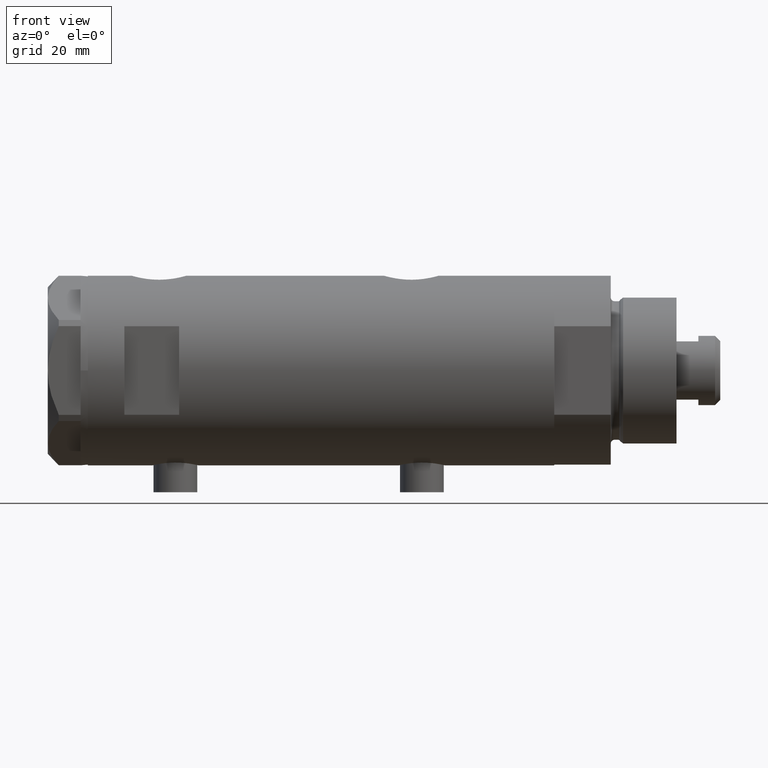
[diagram: clean part render]
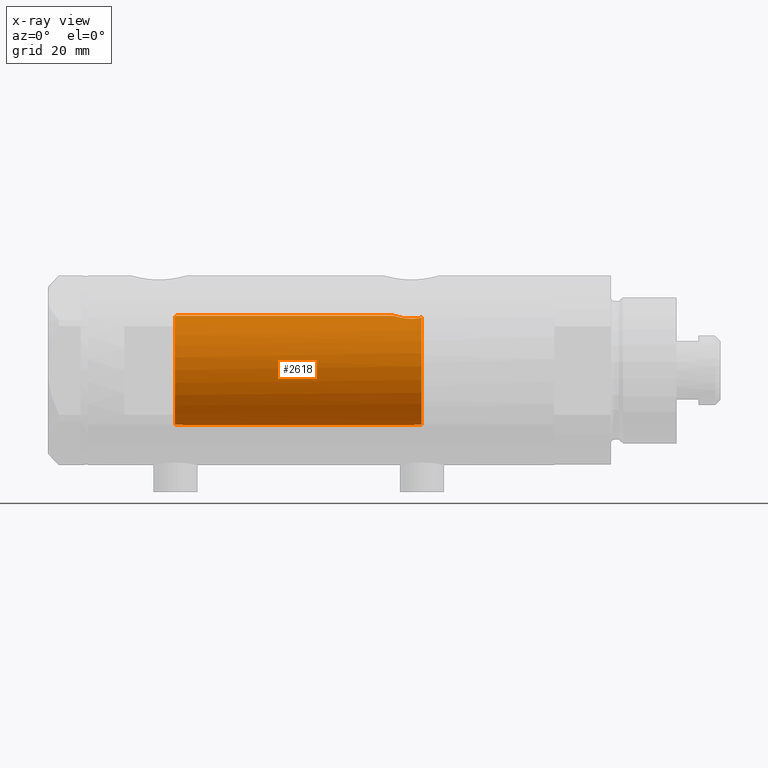
[diagram: x-ray — body ghosted, one internal face saturated and labeled with its STEP entity id]
A machine part, front view, then the same camera in x-ray: the body is ghosted and one INTERNAL B-rep face — a face not visible from any outside direction — is saturated and labeled: STEP entity #2618.
In plain terms, the highlighted cylindrical surface (partial cylindrical patch) has radius 15 mm, axis along (1, 0, -0).
Its self-contained STEP definition (entity closure, byte-faithful):
#51 = CARTESIAN_POINT ( 'NONE',  ( -14.91608554980932055, -1.590576762727819116, 38.01369720243329198 ) ) ;
#56 = CARTESIAN_POINT ( 'NONE',  ( 14.81710879718117724, -2.343063746046469387, -20.48067662538953471 ) ) ;
#152 = ORIENTED_EDGE ( 'NONE', *, *, #1133, .F. ) ;
#217 = EDGE_CURVE ( 'NONE', #2948, #4934, #341, .T. ) ;
#341 = B_SPLINE_CURVE_WITH_KNOTS ( 'NONE', 3,
 ( #4472, #4811, #4030, #3245, #1657, #4840, #877, #4397 ),
 .UNSPECIFIED., .F., .F.,
 ( 4, 2, 2, 4 ),
 ( 2.641598245732904660E-19, 0.001182100180564266394, 0.001773150270846399592, 0.002364200361128532789 ),
 .UNSPECIFIED. ) ;
#351 = DIRECTION ( 'NONE',  ( -0.000000000000000000, -0.000000000000000000, -1.000000000000000000 ) ) ;
#408 = CARTESIAN_POINT ( 'NONE',  ( 14.99508877558422704, -0.4434836953032585405, -19.90007684727664028 ) ) ;
#416 = CYLINDRICAL_SURFACE ( 'NONE', #1873, 15.00000000000000000 ) ;
#441 = CARTESIAN_POINT ( 'NONE',  ( 0.000000000000000000, 0.000000000000000000, -27.55000000000000426 ) ) ;
#457 = CARTESIAN_POINT ( 'NONE',  ( 14.30602371879161439, -4.510400617436905790, -26.58665028800271557 ) ) ;
#494 = ORIENTED_EDGE ( 'NONE', *, *, #217, .F. ) ;
#505 = EDGE_CURVE ( 'NONE', #5006, #751, #2533, .T. ) ;
#512 = CARTESIAN_POINT ( 'NONE',  ( -15.00000000000000000, 3.061618115923464028E-16, 37.45000000000000284 ) ) ;
#514 = ORIENTED_EDGE ( 'NONE', *, *, #4889, .F. ) ;
#567 = CARTESIAN_POINT ( 'NONE',  ( -14.97699254061832796, -0.8454257663520248212, 37.59097868826834343 ) ) ;
#576 = LINE ( 'NONE', #3353, #3545 ) ;
#624 = CARTESIAN_POINT ( 'NONE',  ( -14.98007298506453111, -0.7870736506658164711, -25.27174868555716003 ) ) ;
#625 = DIRECTION ( 'NONE',  ( 0.000000000000000000, 0.000000000000000000, 1.000000000000000000 ) ) ;
#751 = VERTEX_POINT ( 'NONE', #4353 ) ;
#820 = CARTESIAN_POINT ( 'NONE',  ( 14.30772250772360188, -4.505024017690379523, -22.90010806953218037 ) ) ;
#843 = CARTESIAN_POINT ( 'NONE',  ( 14.20819413761015326, -4.809312895991455505, -25.51713251522166104 ) ) ;
#862 = CARTESIAN_POINT ( 'NONE',  ( -14.85859683553260346, -2.056701007386132041, 38.51843972450895848 ) ) ;
#867 = CARTESIAN_POINT ( 'NONE',  ( 14.25977760983849230, -4.654557688538887739, -23.31736805897653042 ) ) ;
#877 = CARTESIAN_POINT ( 'NONE',  ( 14.85289483991917336, -2.102865829523694607, 40.05860377881607093 ) ) ;
#919 = CARTESIAN_POINT ( 'NONE',  ( -14.94313933514151849, -1.312299271472199491, 37.81526966946925228 ) ) ;
#1056 = CARTESIAN_POINT ( 'NONE',  ( -14.87290636797879806, -1.950714596786577326, -26.07831246618854593 ) ) ;
#1133 = EDGE_CURVE ( 'NONE', #751, #2711, #4759, .T. ) ;
#1156 = CARTESIAN_POINT ( 'NONE',  ( 14.23984499268010673, -4.714778477509576682, -23.53008258614764614 ) ) ;
#1207 = CARTESIAN_POINT ( 'NONE',  ( 14.20926245015526135, -4.806160851464704287, -23.96377327795615031 ) ) ;
#1243 = FACE_OUTER_BOUND ( 'NONE', #4602, .T. ) ;
#1259 = CARTESIAN_POINT ( 'NONE',  ( 14.42796883436190569, -4.108435602805831977, -22.10726922759031510 ) ) ;
#1291 = AXIS2_PLACEMENT_3D ( 'NONE', #441, #2855, #3635 ) ;
#1303 = EDGE_CURVE ( 'NONE', #2948, #4917, #576, .T. ) ;
#1312 = CARTESIAN_POINT ( 'NONE',  ( -14.83314878996174357, -2.232849285003168482, 38.81256080311607803 ) ) ;
#1395 = EDGE_CURVE ( 'NONE', #2711, #3333, #2853, .T. ) ;
#1423 = ORIENTED_EDGE ( 'NONE', *, *, #2707, .T. ) ;
#1447 = CARTESIAN_POINT ( 'NONE',  ( 15.00000000000000000, 0.000000000000000000, 39.58500000000000085 ) ) ;
#1502 = CARTESIAN_POINT ( 'NONE',  ( -14.79053751558745944, -2.497999199359361544, -27.55000000000000426 ) ) ;
#1555 = ORIENTED_EDGE ( 'NONE', *, *, #1303, .T. ) ;
#1567 = CARTESIAN_POINT ( 'NONE',  ( 14.49994286062941207, -3.853373987417221702, -21.74743896782911534 ) ) ;
#1652 = CARTESIAN_POINT ( 'NONE',  ( 15.00000000000000000, 5.959273468635536151E-16, -19.88500000000000156 ) ) ;
#1657 = CARTESIAN_POINT ( 'NONE',  ( 14.92029983160078466, -1.555365312915176323, 39.83609703141412695 ) ) ;
#1790 = CARTESIAN_POINT ( 'NONE',  ( -14.99740058099025930, -0.3199290537848247240, -25.16546469274587139 ) ) ;
#1863 = CARTESIAN_POINT ( 'NONE',  ( -14.98749134158487095, -0.6320459414166007539, -25.22599747929445257 ) ) ;
#1873 = AXIS2_PLACEMENT_3D ( 'NONE', #4449, #3612, #2403 ) ;
#1913 = ORIENTED_EDGE ( 'NONE', *, *, #505, .F. ) ;
#1969 = CARTESIAN_POINT ( 'NONE',  ( 14.42775250319760083, -4.105775281508736718, -27.36911445102908758 ) ) ;
#1996 = CARTESIAN_POINT ( 'NONE',  ( 14.90017778876745069, -1.739641523727900596, -20.20130925695125867 ) ) ;
#2020 = CARTESIAN_POINT ( 'NONE',  ( 14.25856516724843814, -4.658255869285517825, -26.17044016644936733 ) ) ;
#2045 = CARTESIAN_POINT ( 'NONE',  ( 14.33594561531103473, -4.414979644548147952, -22.69453393419243525 ) ) ;
#2079 = CARTESIAN_POINT ( 'NONE',  ( 14.82638779339053769, -2.275571356824481750, 40.15000000000000568 ) ) ;
#2115 = ORIENTED_EDGE ( 'NONE', *, *, #1395, .F. ) ;
#2217 = DIRECTION ( 'NONE',  ( 1.000000000000000000, 0.000000000000000000, 0.000000000000000000 ) ) ;
#2265 = CARTESIAN_POINT ( 'NONE',  ( -15.00000000000000000, 0.000000000000000000, -25.15000000000000568 ) ) ;
#2362 = CARTESIAN_POINT ( 'NONE',  ( 14.33349657381506681, -4.422893686125039636, -26.78827841538882737 ) ) ;
#2403 = DIRECTION ( 'NONE',  ( -1.000000000000000000, 0.000000000000000000, 0.000000000000000000 ) ) ;
#2421 = CARTESIAN_POINT ( 'NONE',  ( 14.97537530859971966, -0.8874117095427782598, -19.96137464055827948 ) ) ;
#2443 = CARTESIAN_POINT ( 'NONE',  ( 14.19797987272029438, -4.839174951492910104, -25.29741451501410765 ) ) ;
#2533 = B_SPLINE_CURVE_WITH_KNOTS ( 'NONE', 3,
 ( #4342, #4660, #2670, #4683, #3315, #4911, #1312, #862, #4364, #2922, #51, #919, #3583, #567, #4519, #4544, #4104, #512 ),
 .UNSPECIFIED., .F., .F.,
 ( 4, 2, 2, 2, 2, 2, 2, 2, 4 ),
 ( 0.003715686714229632630, 0.004229951999599991345, 0.004744217284970349627, 0.005258482570340707908, 0.005772747855711066189, 0.006287013141081424471, 0.006801278426451782752, 0.007315543711822141033, 0.007829808997192499315 ),
 .UNSPECIFIED. ) ;
#2567 = CARTESIAN_POINT ( 'NONE',  ( 14.46277203719950677, -3.978470183374504199, -27.55000000000000426 ) ) ;
#2618 = ADVANCED_FACE ( 'NONE', ( #1243 ), #416, .F. ) ;
#2666 = CARTESIAN_POINT ( 'NONE',  ( -14.84760220014584498, -2.134792770974418108, -26.33921818480346033 ) ) ;
#2670 = CARTESIAN_POINT ( 'NONE',  ( -14.78989771875219539, -2.501882951377200737, 39.80631597653683684 ) ) ;
#2686 = CARTESIAN_POINT ( 'NONE',  ( -14.79268570220017409, -2.485279885960841817, -27.23227165314100517 ) ) ;
#2707 = EDGE_CURVE ( 'NONE', #2800, #3333, #4394, .T. ) ;
#2711 = VERTEX_POINT ( 'NONE', #4842 ) ;
#2734 = AXIS2_PLACEMENT_3D ( 'NONE', #3821, #625, #2217 ) ;
#2790 = CARTESIAN_POINT ( 'NONE',  ( 14.72015646623405871, -2.909233045280604113, -20.82572079632733519 ) ) ;
#2800 = VERTEX_POINT ( 'NONE', #2567 ) ;
#2853 = B_SPLINE_CURVE_WITH_KNOTS ( 'NONE', 3,
 ( #2265, #3433, #1790, #1863, #624, #3474, #3819, #3107, #3082, #5100, #1056, #2666, #4680, #4267, #2686, #5026 ),
 .UNSPECIFIED., .F., .F.,
 ( 4, 2, 2, 2, 2, 2, 2, 4 ),
 ( 9.232380109166849670E-20, 0.0004769863284873123192, 0.0009539726569746245300, 0.001430958985461936632, 0.001907945313949248843, 0.002384931642436560837, 0.002861917970923873698, 0.003815890627898489013 ),
 .UNSPECIFIED. ) ;
#2855 = DIRECTION ( 'NONE',  ( 0.000000000000000000, 0.000000000000000000, -1.000000000000000000 ) ) ;
#2922 = CARTESIAN_POINT ( 'NONE',  ( -14.90147761301467710, -1.720422196468683440, 38.12794212931562754 ) ) ;
#2948 = VERTEX_POINT ( 'NONE', #1447 ) ;
#3082 = CARTESIAN_POINT ( 'NONE',  ( -14.91288509639097803, -1.618377549727004316, -25.73790984008952165 ) ) ;
#3107 = CARTESIAN_POINT ( 'NONE',  ( -14.92627313122705779, -1.491421694539937226, -25.63730514635739866 ) ) ;
#3245 = CARTESIAN_POINT ( 'NONE',  ( 14.93900636919599911, -1.364886281976677163, 39.77622504971314044 ) ) ;
#3315 = CARTESIAN_POINT ( 'NONE',  ( -14.80379558280398555, -2.418854260473059625, 39.29535450491658821 ) ) ;
#3333 = VERTEX_POINT ( 'NONE', #1502 ) ;
#3353 = CARTESIAN_POINT ( 'NONE',  ( 15.00000000000000000, 1.836970198721029194E-15, 63.95000000000000995 ) ) ;
#3399 = CARTESIAN_POINT ( 'NONE',  ( -14.79155164274525980, -2.491987158875424768, 40.15000000000000568 ) ) ;
#3433 = CARTESIAN_POINT ( 'NONE',  ( -15.00000000000000711, -0.1613061104920439637, -25.15000000000001279 ) ) ;
#3474 = CARTESIAN_POINT ( 'NONE',  ( -14.96154495298569032, -1.083625483837068026, -25.39138979525010598 ) ) ;
#3498 = CARTESIAN_POINT ( 'NONE',  ( 14.23846660849503465, -4.718934182878723682, -25.95401121469808459 ) ) ;
#3527 = B_SPLINE_CURVE_WITH_KNOTS ( 'NONE', 3,
 ( #4857, #1969, #4754, #2362, #457, #2020, #3498, #843, #2443, #4834, #4047, #4778, #1207, #1156, #867, #820, #2045, #1259, #1567, #3656, #2790, #56, #3997, #1996, #3604, #5175, #2421, #408, #4362, #1652 ),
 .UNSPECIFIED., .F., .F.,
 ( 4, 2, 2, 2, 2, 2, 2, 2, 2, 2, 2, 2, 2, 2, 4 ),
 ( 0.004672505804584291961, 0.005337629501999298885, 0.006002753199414305810, 0.006667876896829313602, 0.007333000594244319659, 0.007998124291659327451, 0.008663247989074335242, 0.009328371686489341300, 0.009993495383904347357, 0.01132374277873436988, 0.01265399017356439067, 0.01331911387097940366, 0.01398423756839441666, 0.01464936126580942966, 0.01531448496322444265 ),
 .UNSPECIFIED. ) ;
#3545 = VECTOR ( 'NONE', #4973, 1000.000000000000000 ) ;
#3583 = CARTESIAN_POINT ( 'NONE',  ( -14.95581892566389115, -1.161262481484112152, 37.72937042154403997 ) ) ;
#3604 = CARTESIAN_POINT ( 'NONE',  ( 14.92307637240703677, -1.532123959568890248, -20.12726557582076126 ) ) ;
#3612 = DIRECTION ( 'NONE',  ( -0.000000000000000000, -0.000000000000000000, -1.000000000000000000 ) ) ;
#3626 = CARTESIAN_POINT ( 'NONE',  ( 15.00000000000000000, 5.959273468635536151E-16, -19.88500000000000156 ) ) ;
#3635 = DIRECTION ( 'NONE',  ( -1.000000000000000000, 0.000000000000000000, 0.000000000000000000 ) ) ;
#3656 = CARTESIAN_POINT ( 'NONE',  ( 14.64727859494137263, -3.248701865452403581, -21.10174013696654782 ) ) ;
#3819 = CARTESIAN_POINT ( 'NONE',  ( -14.95054302956255121, -1.224431043437662625, -25.46458290830103977 ) ) ;
#3821 = CARTESIAN_POINT ( 'NONE',  ( 0.000000000000000000, 0.000000000000000000, 40.15000000000000568 ) ) ;
#3974 = CARTESIAN_POINT ( 'NONE',  ( -15.00000000000000000, 0.000000000000000000, 63.95000000000000995 ) ) ;
#3993 = CIRCLE ( 'NONE', #2734, 15.00000000000000000 ) ;
#3997 = CARTESIAN_POINT ( 'NONE',  ( 14.84733308118440398, -2.144376633039214219, -20.37751912952715472 ) ) ;
#4019 = ORIENTED_EDGE ( 'NONE', *, *, #4727, .T. ) ;
#4030 = CARTESIAN_POINT ( 'NONE',  ( 14.98404828787190191, -0.7909490205761877668, 39.63356230794191504 ) ) ;
#4047 = CARTESIAN_POINT ( 'NONE',  ( 14.18786347641749757, -4.868757996482117711, -24.63322300400293230 ) ) ;
#4104 = CARTESIAN_POINT ( 'NONE',  ( -15.00000000000000355, -0.1716226368084263487, 37.45000000000001705 ) ) ;
#4267 = CARTESIAN_POINT ( 'NONE',  ( -14.80570803900863908, -2.410056876876584209, -26.91354637206099554 ) ) ;
#4342 = CARTESIAN_POINT ( 'NONE',  ( -14.79155164274525980, -2.491987158875424768, 40.15000000000000568 ) ) ;
#4353 = CARTESIAN_POINT ( 'NONE',  ( -15.00000000000000000, 3.061618115923464028E-16, 37.45000000000000284 ) ) ;
#4362 = CARTESIAN_POINT ( 'NONE',  ( 15.00000000000000000, -0.2216692655473424256, -19.88499999999999801 ) ) ;
#4364 = CARTESIAN_POINT ( 'NONE',  ( -14.87260732106556560, -1.954338522023925773, 38.38146298750767471 ) ) ;
#4394 = CIRCLE ( 'NONE', #1291, 15.00000000000000000 ) ;
#4397 = CARTESIAN_POINT ( 'NONE',  ( 14.82638779339053769, -2.275571356824481750, 40.15000000000000568 ) ) ;
#4449 = CARTESIAN_POINT ( 'NONE',  ( 0.000000000000000000, 0.000000000000000000, 63.95000000000000995 ) ) ;
#4472 = CARTESIAN_POINT ( 'NONE',  ( 15.00000000000000000, 0.000000000000000000, 39.58500000000000085 ) ) ;
#4519 = CARTESIAN_POINT ( 'NONE',  ( -14.98541608527170332, -0.6823644196029130526, 37.53879464417551759 ) ) ;
#4544 = CARTESIAN_POINT ( 'NONE',  ( -14.99695275358354252, -0.3460123648701027288, 37.46810396824249523 ) ) ;
#4602 = EDGE_LOOP ( 'NONE', ( #494, #1555, #514, #1423, #2115, #152, #1913, #4019 ) ) ;
#4660 = CARTESIAN_POINT ( 'NONE',  ( -14.78924132900106869, -2.505700361584525471, 39.97913437470933218 ) ) ;
#4680 = CARTESIAN_POINT ( 'NONE',  ( -14.83575030094399771, -2.214690538106014017, -26.47938890130203404 ) ) ;
#4683 = CARTESIAN_POINT ( 'NONE',  ( -14.79723843696374885, -2.458094276708261638, 39.46231574989083413 ) ) ;
#4715 = VECTOR ( 'NONE', #351, 1000.000000000000000 ) ;
#4727 = EDGE_CURVE ( 'NONE', #5006, #4934, #3993, .T. ) ;
#4754 = CARTESIAN_POINT ( 'NONE',  ( 14.39424372609267522, -4.221002267729139668, -27.17893131093289938 ) ) ;
#4759 = LINE ( 'NONE', #3974, #4715 ) ;
#4778 = CARTESIAN_POINT ( 'NONE',  ( 14.19858338301463085, -4.837406781463695182, -24.18614104090498884 ) ) ;
#4811 = CARTESIAN_POINT ( 'NONE',  ( 15.00000000000000178, -0.3999014018875941545, 39.58500000000000085 ) ) ;
#4834 = CARTESIAN_POINT ( 'NONE',  ( 14.18781489734108270, -4.868896704194245473, -24.85545969036061464 ) ) ;
#4840 = CARTESIAN_POINT ( 'NONE',  ( 14.87720562886504538, -1.924385875533401125, 39.97741675737692901 ) ) ;
#4842 = CARTESIAN_POINT ( 'NONE',  ( -15.00000000000000000, 0.000000000000000000, -25.15000000000000568 ) ) ;
#4857 = CARTESIAN_POINT ( 'NONE',  ( 14.46277203719950677, -3.978470183374504199, -27.55000000000000426 ) ) ;
#4889 = EDGE_CURVE ( 'NONE', #2800, #4917, #3527, .T. ) ;
#4911 = CARTESIAN_POINT ( 'NONE',  ( -14.82167156606024783, -2.306788152106016287, 38.97115114601642460 ) ) ;
#4917 = VERTEX_POINT ( 'NONE', #3626 ) ;
#4934 = VERTEX_POINT ( 'NONE', #2079 ) ;
#4973 = DIRECTION ( 'NONE',  ( -0.000000000000000000, -0.000000000000000000, -1.000000000000000000 ) ) ;
#5006 = VERTEX_POINT ( 'NONE', #3399 ) ;
#5026 = CARTESIAN_POINT ( 'NONE',  ( -14.79053751558745944, -2.497999199359361544, -27.55000000000000426 ) ) ;
#5100 = CARTESIAN_POINT ( 'NONE',  ( -14.88625129008227077, -1.847379311388060108, -25.95812992433159749 ) ) ;
#5175 = CARTESIAN_POINT ( 'NONE',  ( 14.96064712090283777, -1.106639041422191605, -20.00738179736371336 ) ) ;